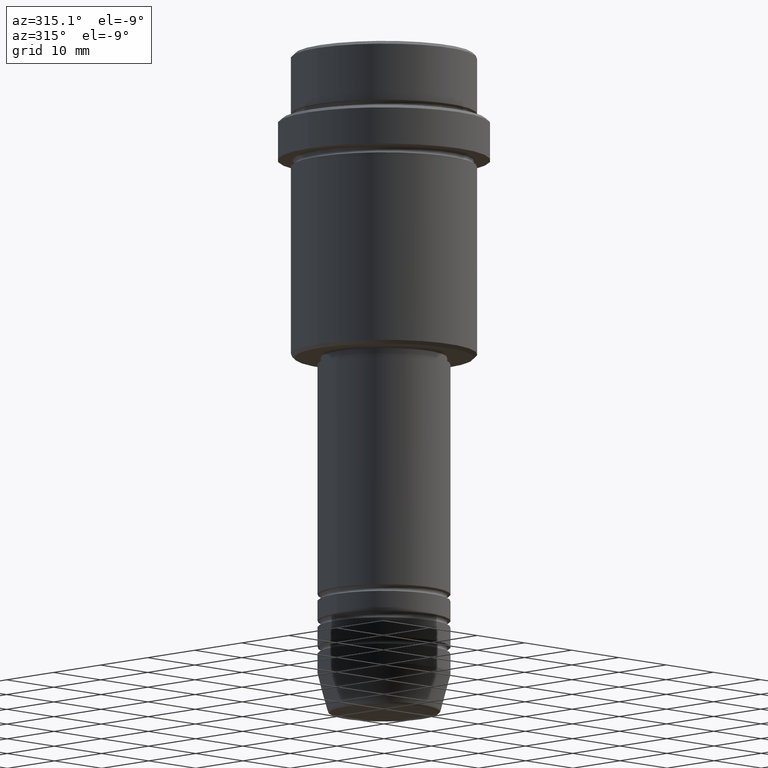
[diagram: clean part render]
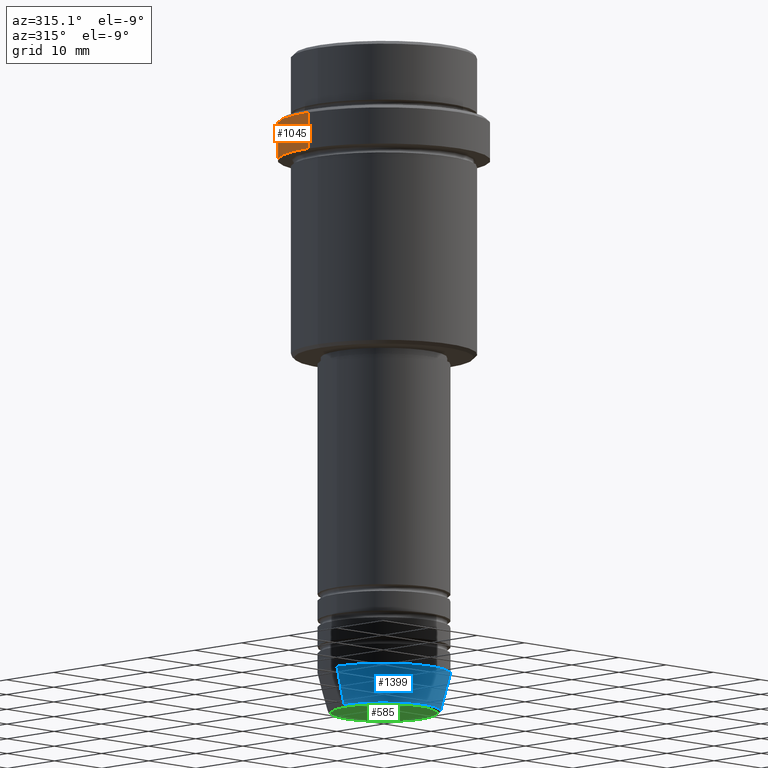
[diagram: same view with three faces highlighted in distinct colors, each labeled with its STEP entity id]
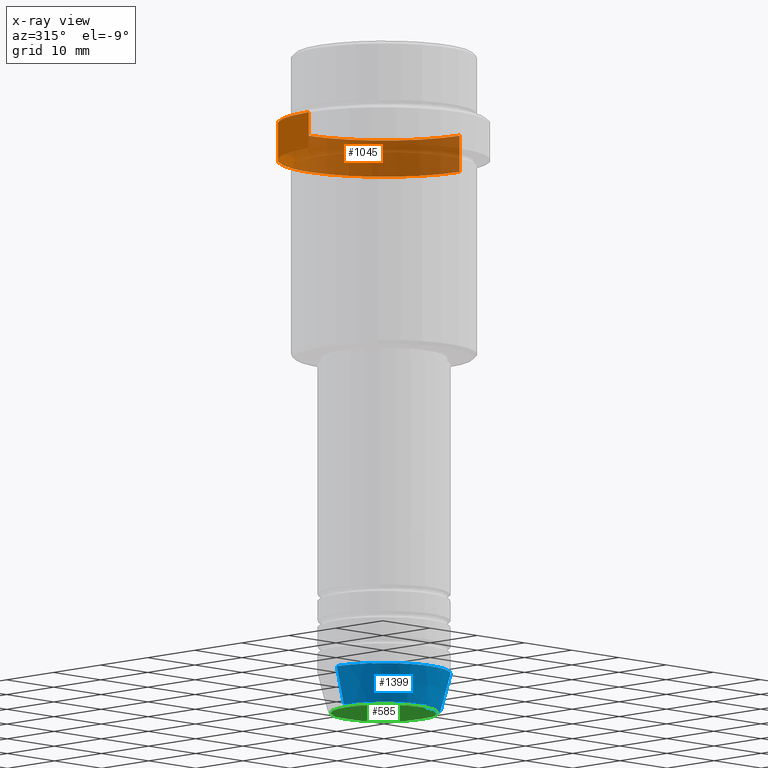
[diagram: x-ray of the same camera — body ghosted, the three highlighted faces saturated]
A machine part, auxiliary view with three faces highlighted in distinct colors.
The next image is the same camera in x-ray (body ghosted, the three faces saturated) — at least one of them is partly hidden behind the body in this view.
Their STEP definitions:

[orange] entity #1045 — the highlighted cylindrical surface (partial cylindrical patch) has radius 16 mm, axis along (-0, -0, 1).
#28 = AXIS2_PLACEMENT_3D ( 'NONE', #622, #507, #1384 ) ;
#120 = EDGE_CURVE ( 'NONE', #1370, #648, #1048, .T. ) ;
#183 = CYLINDRICAL_SURFACE ( 'NONE', #28, 15.99999999999999289 ) ;
#333 = LINE ( 'NONE', #789, #1027 ) ;
#355 = DIRECTION ( 'NONE',  ( -0.000000000000000000, -0.000000000000000000, 1.000000000000000000 ) ) ;
#417 = DIRECTION ( 'NONE',  ( 1.000000000000000000, 0.000000000000000000, 0.000000000000000000 ) ) ;
#507 = DIRECTION ( 'NONE',  ( -0.000000000000000000, -0.000000000000000000, 1.000000000000000000 ) ) ;
#512 = CARTESIAN_POINT ( 'NONE',  ( 0.000000000000000000, 0.000000000000000000, -16.00000000000000000 ) ) ;
#548 = AXIS2_PLACEMENT_3D ( 'NONE', #512, #1060, #417 ) ;
#558 = EDGE_LOOP ( 'NONE', ( #974, #1312, #1350, #1114 ) ) ;
#590 = CARTESIAN_POINT ( 'NONE',  ( -15.99999999999999289, 1.959434878635764343E-15, -10.49999999999999467 ) ) ;
#622 = CARTESIAN_POINT ( 'NONE',  ( 0.000000000000000000, 0.000000000000000000, 0.000000000000000000 ) ) ;
#624 = DIRECTION ( 'NONE',  ( 1.000000000000000000, 0.000000000000000000, 0.000000000000000000 ) ) ;
#648 = VERTEX_POINT ( 'NONE', #955 ) ;
#778 = EDGE_CURVE ( 'NONE', #854, #1370, #333, .T. ) ;
#789 = CARTESIAN_POINT ( 'NONE',  ( -15.99999999999999289, 1.959434878635764343E-15, 0.000000000000000000 ) ) ;
#854 = VERTEX_POINT ( 'NONE', #1012 ) ;
#855 = FACE_OUTER_BOUND ( 'NONE', #558, .T. ) ;
#891 = DIRECTION ( 'NONE',  ( -0.000000000000000000, -0.000000000000000000, 1.000000000000000000 ) ) ;
#951 = VERTEX_POINT ( 'NONE', #1036 ) ;
#955 = CARTESIAN_POINT ( 'NONE',  ( 15.99999999999999289, 0.000000000000000000, -10.49999999999999467 ) ) ;
#956 = EDGE_CURVE ( 'NONE', #951, #648, #1259, .T. ) ;
#974 = ORIENTED_EDGE ( 'NONE', *, *, #989, .T. ) ;
#989 = EDGE_CURVE ( 'NONE', #951, #854, #1164, .T. ) ;
#1012 = CARTESIAN_POINT ( 'NONE',  ( -15.99999999999999289, 1.959434878635764343E-15, -16.00000000000000000 ) ) ;
#1027 = VECTOR ( 'NONE', #891, 1000.000000000000000 ) ;
#1036 = CARTESIAN_POINT ( 'NONE',  ( 15.99999999999999289, 0.000000000000000000, -16.00000000000000000 ) ) ;
#1045 = ADVANCED_FACE ( 'NONE', ( #855 ), #183, .T. ) ;
#1048 = CIRCLE ( 'NONE', #1297, 15.99999999999999289 ) ;
#1060 = DIRECTION ( 'NONE',  ( -0.000000000000000000, -0.000000000000000000, 1.000000000000000000 ) ) ;
#1063 = CARTESIAN_POINT ( 'NONE',  ( 0.000000000000000000, 0.000000000000000000, -10.49999999999999467 ) ) ;
#1069 = DIRECTION ( 'NONE',  ( 0.000000000000000000, 0.000000000000000000, -1.000000000000000000 ) ) ;
#1114 = ORIENTED_EDGE ( 'NONE', *, *, #956, .F. ) ;
#1164 = CIRCLE ( 'NONE', #548, 15.99999999999999289 ) ;
#1257 = VECTOR ( 'NONE', #355, 1000.000000000000000 ) ;
#1259 = LINE ( 'NONE', #1340, #1257 ) ;
#1297 = AXIS2_PLACEMENT_3D ( 'NONE', #1063, #1069, #624 ) ;
#1312 = ORIENTED_EDGE ( 'NONE', *, *, #778, .T. ) ;
#1340 = CARTESIAN_POINT ( 'NONE',  ( 15.99999999999999289, 0.000000000000000000, 0.000000000000000000 ) ) ;
#1350 = ORIENTED_EDGE ( 'NONE', *, *, #120, .T. ) ;
#1370 = VERTEX_POINT ( 'NONE', #590 ) ;
#1384 = DIRECTION ( 'NONE',  ( 1.000000000000000000, 0.000000000000000000, 0.000000000000000000 ) ) ;

[blue] entity #1399 — the highlighted conical surface has half-angle 15 deg.
#24 = CARTESIAN_POINT ( 'NONE',  ( 0.000000000000000000, 0.000000000000000000, -94.00000000000000000 ) ) ;
#67 = AXIS2_PLACEMENT_3D ( 'NONE', #1166, #298, #186 ) ;
#73 = FACE_OUTER_BOUND ( 'NONE', #497, .T. ) ;
#76 = CARTESIAN_POINT ( 'NONE',  ( 10.00000000000000000, 0.000000000000000000, -94.00000000000000000 ) ) ;
#102 = DIRECTION ( 'NONE',  ( -0.000000000000000000, -0.000000000000000000, 1.000000000000000000 ) ) ;
#121 = ORIENTED_EDGE ( 'NONE', *, *, #636, .T. ) ;
#122 = DIRECTION ( 'NONE',  ( 1.000000000000000000, 0.000000000000000000, 0.000000000000000000 ) ) ;
#181 = VECTOR ( 'NONE', #728, 1000.000000000000114 ) ;
#186 = DIRECTION ( 'NONE',  ( 1.000000000000000000, 0.000000000000000000, 0.000000000000000000 ) ) ;
#287 = VERTEX_POINT ( 'NONE', #650 ) ;
#298 = DIRECTION ( 'NONE',  ( -0.000000000000000000, -0.000000000000000000, 1.000000000000000000 ) ) ;
#363 = VECTOR ( 'NONE', #1286, 1000.000000000000114 ) ;
#383 = AXIS2_PLACEMENT_3D ( 'NONE', #24, #102, #122 ) ;
#403 = CARTESIAN_POINT ( 'NONE',  ( 10.00000000000000000, 0.000000000000000000, -94.00000000000000000 ) ) ;
#497 = EDGE_LOOP ( 'NONE', ( #740, #121, #1151, #1025 ) ) ;
#511 = DIRECTION ( 'NONE',  ( 1.000000000000000000, 0.000000000000000000, 0.000000000000000000 ) ) ;
#589 = VERTEX_POINT ( 'NONE', #403 ) ;
#619 = EDGE_CURVE ( 'NONE', #287, #1415, #738, .T. ) ;
#626 = CARTESIAN_POINT ( 'NONE',  ( -10.00000000000000000, 1.224646799147353256E-15, -94.00000000000000000 ) ) ;
#627 = EDGE_CURVE ( 'NONE', #639, #589, #848, .T. ) ;
#636 = EDGE_CURVE ( 'NONE', #287, #639, #983, .T. ) ;
#639 = VERTEX_POINT ( 'NONE', #1174 ) ;
#650 = CARTESIAN_POINT ( 'NONE',  ( -8.491604264568312743, 1.132284198685156584E-15, -99.62940952255127058 ) ) ;
#728 = DIRECTION ( 'NONE',  ( -0.2588190451025211281, 3.169619151431769872E-17, 0.9659258262890680902 ) ) ;
#738 = LINE ( 'NONE', #863, #181 ) ;
#740 = ORIENTED_EDGE ( 'NONE', *, *, #619, .F. ) ;
#756 = AXIS2_PLACEMENT_3D ( 'NONE', #935, #843, #511 ) ;
#795 = EDGE_CURVE ( 'NONE', #1415, #589, #1009, .T. ) ;
#843 = DIRECTION ( 'NONE',  ( -0.000000000000000000, -0.000000000000000000, 1.000000000000000000 ) ) ;
#848 = LINE ( 'NONE', #76, #363 ) ;
#863 = CARTESIAN_POINT ( 'NONE',  ( -10.00000000000000000, 1.224646799147353256E-15, -94.00000000000000000 ) ) ;
#935 = CARTESIAN_POINT ( 'NONE',  ( 0.000000000000000000, 0.000000000000000000, -94.00000000000000000 ) ) ;
#983 = CIRCLE ( 'NONE', #67, 8.491604264568312743 ) ;
#1009 = CIRCLE ( 'NONE', #383, 10.00000000000000000 ) ;
#1025 = ORIENTED_EDGE ( 'NONE', *, *, #795, .F. ) ;
#1151 = ORIENTED_EDGE ( 'NONE', *, *, #627, .T. ) ;
#1166 = CARTESIAN_POINT ( 'NONE',  ( 0.000000000000000000, 0.000000000000000000, -99.62940952255127058 ) ) ;
#1174 = CARTESIAN_POINT ( 'NONE',  ( 8.491604264568312743, 0.000000000000000000, -99.62940952255127058 ) ) ;
#1286 = DIRECTION ( 'NONE',  ( 0.2588190451025211281, 0.000000000000000000, 0.9659258262890680902 ) ) ;
#1376 = CONICAL_SURFACE ( 'NONE', #756, 10.00000000000000000, 0.2617993877991498519 ) ;
#1399 = ADVANCED_FACE ( 'NONE', ( #73 ), #1376, .T. ) ;
#1415 = VERTEX_POINT ( 'NONE', #626 ) ;

[green] entity #585 — the highlighted planar face has unit normal (0, -0, 1).
#89 = PLANE ( 'NONE',  #269 ) ;
#138 = AXIS2_PLACEMENT_3D ( 'NONE', #941, #1377, #834 ) ;
#175 = DIRECTION ( 'NONE',  ( 1.000000000000000000, 0.000000000000000000, 0.000000000000000000 ) ) ;
#195 = DIRECTION ( 'NONE',  ( 0.000000000000000000, -0.000000000000000000, 1.000000000000000000 ) ) ;
#269 = AXIS2_PLACEMENT_3D ( 'NONE', #1271, #195, #175 ) ;
#307 = DIRECTION ( 'NONE',  ( 1.000000000000000000, 0.000000000000000000, 0.000000000000000000 ) ) ;
#331 = DIRECTION ( 'NONE',  ( 0.000000000000000000, 0.000000000000000000, -1.000000000000000000 ) ) ;
#340 = ORIENTED_EDGE ( 'NONE', *, *, #681, .T. ) ;
#585 = ADVANCED_FACE ( 'NONE', ( #1062 ), #89, .F. ) ;
#671 = CARTESIAN_POINT ( 'NONE',  ( 0.000000000000000000, 0.000000000000000000, -100.0000000000000000 ) ) ;
#681 = EDGE_CURVE ( 'NONE', #1170, #776, #964, .T. ) ;
#711 = CIRCLE ( 'NONE', #1079, 8.008641351423779753 ) ;
#764 = CARTESIAN_POINT ( 'NONE',  ( 8.008641351423779753, 0.000000000000000000, -100.0000000000000000 ) ) ;
#776 = VERTEX_POINT ( 'NONE', #878 ) ;
#834 = DIRECTION ( 'NONE',  ( 1.000000000000000000, 0.000000000000000000, 0.000000000000000000 ) ) ;
#878 = CARTESIAN_POINT ( 'NONE',  ( -8.008641351423779753, 1.010348648938493172E-15, -100.0000000000000000 ) ) ;
#941 = CARTESIAN_POINT ( 'NONE',  ( 0.000000000000000000, 0.000000000000000000, -100.0000000000000000 ) ) ;
#964 = CIRCLE ( 'NONE', #138, 8.008641351423779753 ) ;
#1062 = FACE_OUTER_BOUND ( 'NONE', #1402, .T. ) ;
#1079 = AXIS2_PLACEMENT_3D ( 'NONE', #671, #331, #307 ) ;
#1170 = VERTEX_POINT ( 'NONE', #764 ) ;
#1188 = EDGE_CURVE ( 'NONE', #776, #1170, #711, .T. ) ;
#1221 = ORIENTED_EDGE ( 'NONE', *, *, #1188, .T. ) ;
#1271 = CARTESIAN_POINT ( 'NONE',  ( 0.000000000000000000, 0.000000000000000000, -100.0000000000000000 ) ) ;
#1377 = DIRECTION ( 'NONE',  ( 0.000000000000000000, 0.000000000000000000, -1.000000000000000000 ) ) ;
#1402 = EDGE_LOOP ( 'NONE', ( #340, #1221 ) ) ;